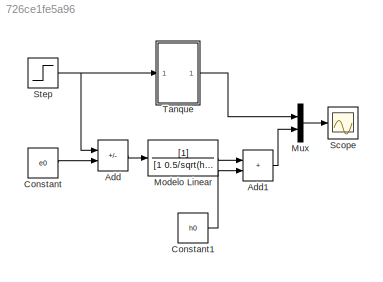
MODEL slx_726ce1fe5a96
KIND model
CONFIG AbsTol = auto
CONFIG EnableMultiTasking = off
CONFIG FixedStep = auto
CONFIG MaxStep = auto
CONFIG MinStep = auto
CONFIG RelTol = 1e-3
CONFIG SampleTimeConstraint = Unconstrained
CONFIG Solver = VariableStepAuto
CONFIG SolverName = VariableStepAuto
CONFIG StartTime = 0.0
CONFIG StopTime = 20
BLOCK [Sum] Add
  IconShape = rectangular
  Inputs = +-
  Ports = [2, 1]
BLOCK [Sum] Add1
  IconShape = rectangular
  Ports = [2, 1]
BLOCK [Constant] Constant
  Value = e0
BLOCK [Constant] Constant1
  Value = h0
BLOCK [TransferFcn] Modelo Linear 
  Denominator = [1 0.5/sqrt(h0)]
BLOCK [Mux] Mux
  DisplayOption = bar
  Inputs = 2
  Ports = [2, 1]
BLOCK [Scope] Scope
  Floating = off
  NumInputPorts = 1
  Ports = [1]
  ScopeSpecificationString = Simulink.scopes.TimeScopeBlockCfg('CurrentConfiguration', extmgr.ConfigurationSet(extmgr.Configuration('Core','General UI',true),extmgr.Configuration('Core','Source UI',true),extmgr.Configuration('Sources','WiredSimulink',true),extmgr.Configuration('Visuals','Time Domain',true,'SerializedDisplays',{struct('MinYLimReal','0.97375','MaxYLimReal','1.23621','YLabelReal','','MinYLimMag','0.97375','MaxYL...<+1386ch>
BLOCK [Step] Step
  After = ef
  Before = e0
  SampleTime = 0
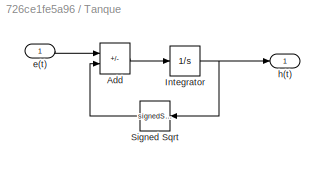
BLOCK [SubSystem] Tanque
  Ports = [1, 1]
  RequestExecContextInheritance = off
BLOCK [Sum] Tanque/Add
  IconShape = rectangular
  Inputs = +-
  Ports = [2, 1]
BLOCK [Integrator] Tanque/Integrator
  InitialCondition = h0
  Ports = [1, 1]
BLOCK [Sqrt] Tanque/Signed Sqrt
  NameLocation = top
  Operator = signedSqrt
  OutputSignalType = real
BLOCK [Inport] Tanque/e(t)
BLOCK [Outport] Tanque/h(t)
LINE Add1:1 -> Mux:2
LINE Add:1 -> Modelo Linear :1
LINE Constant1:1 -> Add1:2
LINE Constant:1 -> Add:2
LINE Modelo Linear :1 -> Add1:1
LINE Mux:1 -> Scope:1
NET Step:1 -> Add:1, Tanque:1
LINE Tanque/Add:1 -> Tanque/Integrator:1
NET Tanque/Integrator:1 -> Tanque/Signed Sqrt:1, Tanque/h(t):1
LINE Tanque/Signed Sqrt:1 -> Tanque/Add:2
LINE Tanque/e(t):1 -> Tanque/Add:1
LINE Tanque:1 -> Mux:1
note: NET lines group one-source signal fan-out (src -> all destinations, sorted); 1:1 wires keep LINE
